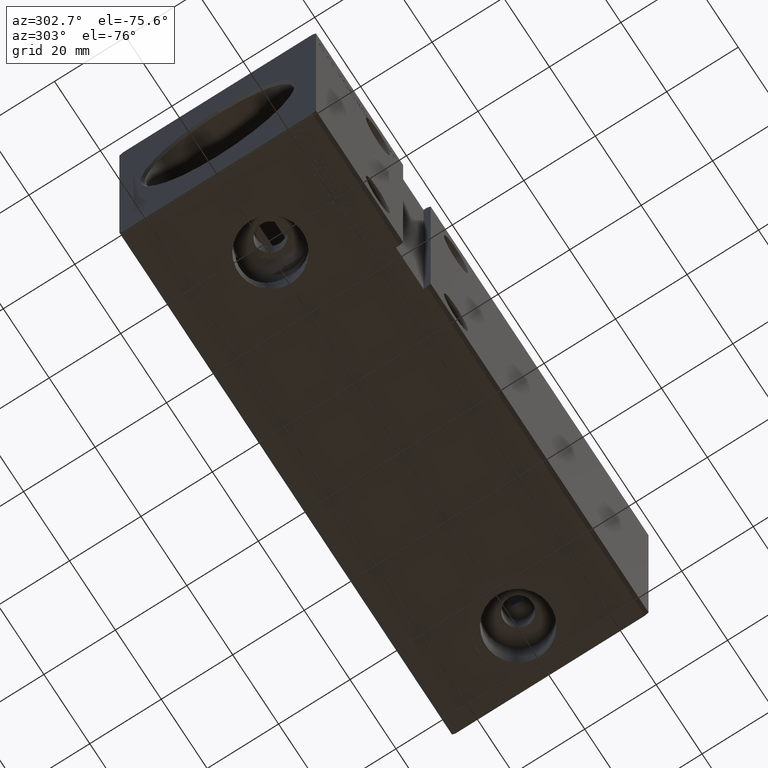
[diagram: clean part render]
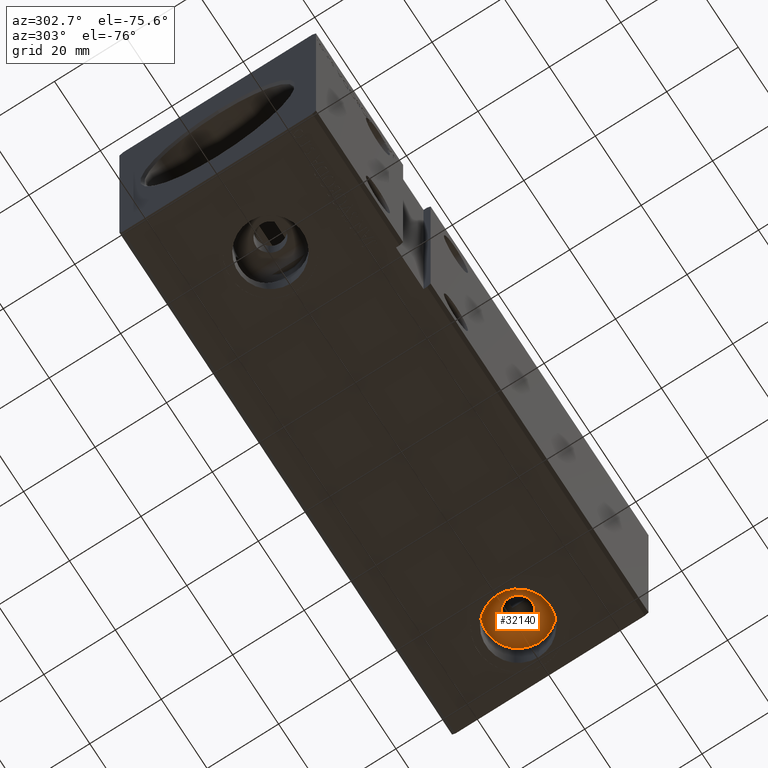
[diagram: same view with one face highlighted and labeled with its STEP entity id]
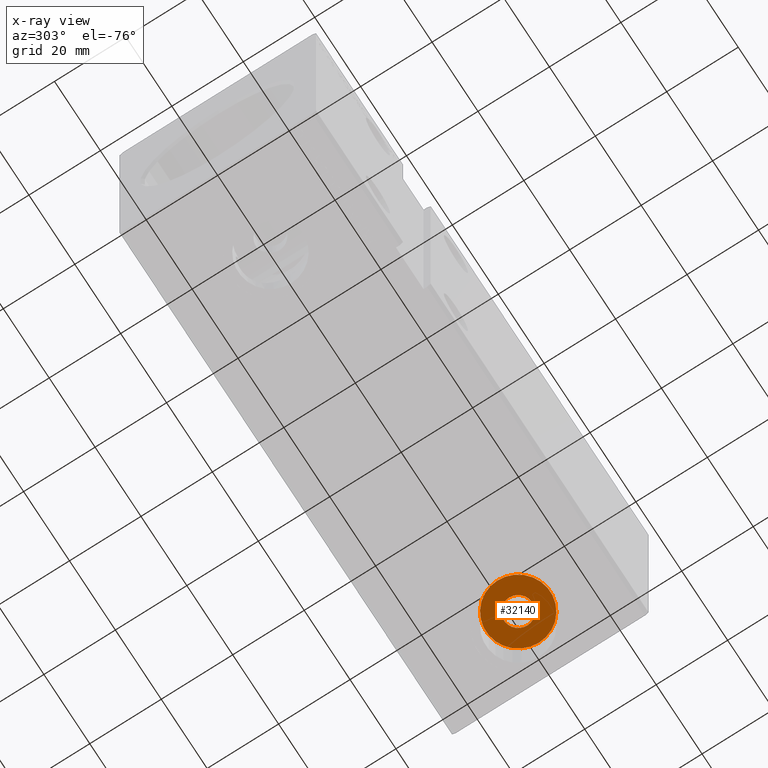
[diagram: x-ray of the same camera — body ghosted, the highlighted face saturated]
A machine part, auxiliary view. The second image highlights one B-rep face of the part: STEP entity #32140.
The next image is the same camera in x-ray: the body ghosted, the highlighted face saturated — about 0% of this face is hidden behind the body in this view.
In plain terms, the highlighted planar face has unit normal (0, 0, -1).
Its self-contained STEP definition (entity closure, byte-faithful):
#155 = VERTEX_POINT ( 'NONE', #12234 ) ;
#889 = AXIS2_PLACEMENT_3D ( 'NONE', #22356, #15987, #12607 ) ;
#1468 = FACE_OUTER_BOUND ( 'NONE', #2771, .T. ) ;
#1624 = CIRCLE ( 'NONE', #2349, 4.000000000000003553 ) ;
#1695 = AXIS2_PLACEMENT_3D ( 'NONE', #9427, #33383, #18015 ) ;
#2349 = AXIS2_PLACEMENT_3D ( 'NONE', #17452, #17258, #20829 ) ;
#2771 = EDGE_LOOP ( 'NONE', ( #37873, #38773 ) ) ;
#2900 = EDGE_CURVE ( 'NONE', #22588, #25705, #32179, .T. ) ;
#9216 = ORIENTED_EDGE ( 'NONE', *, *, #37714, .F. ) ;
#9427 = CARTESIAN_POINT ( 'NONE',  ( 130.9999999999999432, -1.771764358548707728E-14, -23.79999999999998650 ) ) ;
#11031 = PLANE ( 'NONE',  #28150 ) ;
#12234 = CARTESIAN_POINT ( 'NONE',  ( 134.9999999999999432, -1.722778486582813669E-14, -23.79999999999998650 ) ) ;
#12607 = DIRECTION ( 'NONE',  ( -1.000000000000000000, 0.000000000000000000, 0.000000000000000000 ) ) ;
#12638 = CARTESIAN_POINT ( 'NONE',  ( 130.9999999999999432, -1.771764358548707728E-14, -23.79999999999998650 ) ) ;
#13029 = DIRECTION ( 'NONE',  ( 0.000000000000000000, 0.000000000000000000, -1.000000000000000000 ) ) ;
#14243 = CIRCLE ( 'NONE', #889, 8.999999999999994671 ) ;
#15987 = DIRECTION ( 'NONE',  ( 0.000000000000000000, 0.000000000000000000, -1.000000000000000000 ) ) ;
#17210 = DIRECTION ( 'NONE',  ( 0.000000000000000000, 0.000000000000000000, -1.000000000000000000 ) ) ;
#17258 = DIRECTION ( 'NONE',  ( 0.000000000000000000, 0.000000000000000000, -1.000000000000000000 ) ) ;
#17452 = CARTESIAN_POINT ( 'NONE',  ( 130.9999999999999432, -1.771764358548707728E-14, -23.79999999999998650 ) ) ;
#18015 = DIRECTION ( 'NONE',  ( -1.000000000000000000, 0.000000000000000000, 0.000000000000000000 ) ) ;
#18487 = VERTEX_POINT ( 'NONE', #31240 ) ;
#19206 = DIRECTION ( 'NONE',  ( -1.000000000000000000, 0.000000000000000000, 0.000000000000000000 ) ) ;
#19605 = DIRECTION ( 'NONE',  ( -1.000000000000000000, 0.000000000000000000, -0.000000000000000000 ) ) ;
#20829 = DIRECTION ( 'NONE',  ( -1.000000000000000000, 0.000000000000000000, 0.000000000000000000 ) ) ;
#22238 = CARTESIAN_POINT ( 'NONE',  ( 139.9999999999999716, -1.661546146625446095E-14, -23.79999999999998650 ) ) ;
#22356 = CARTESIAN_POINT ( 'NONE',  ( 130.9999999999999432, -1.771764358548707728E-14, -23.79999999999998650 ) ) ;
#22588 = VERTEX_POINT ( 'NONE', #33096 ) ;
#22995 = CARTESIAN_POINT ( 'NONE',  ( 0.000000000000000000, 0.000000000000000000, -23.79999999999998650 ) ) ;
#24205 = CIRCLE ( 'NONE', #35692, 4.000000000000003553 ) ;
#24217 = EDGE_CURVE ( 'NONE', #25705, #22588, #14243, .T. ) ;
#25705 = VERTEX_POINT ( 'NONE', #22238 ) ;
#28150 = AXIS2_PLACEMENT_3D ( 'NONE', #22995, #17210, #19605 ) ;
#31067 = ORIENTED_EDGE ( 'NONE', *, *, #32952, .F. ) ;
#31240 = CARTESIAN_POINT ( 'NONE',  ( 126.9999999999999432, -1.771764358548707728E-14, -23.79999999999998650 ) ) ;
#31990 = FACE_BOUND ( 'NONE', #35537, .T. ) ;
#32140 = ADVANCED_FACE ( 'NONE', ( #31990, #1468 ), #11031, .T. ) ;
#32179 = CIRCLE ( 'NONE', #1695, 8.999999999999994671 ) ;
#32952 = EDGE_CURVE ( 'NONE', #18487, #155, #24205, .T. ) ;
#33096 = CARTESIAN_POINT ( 'NONE',  ( 121.9999999999999574, -1.771764358548707728E-14, -23.79999999999998650 ) ) ;
#33383 = DIRECTION ( 'NONE',  ( 0.000000000000000000, 0.000000000000000000, -1.000000000000000000 ) ) ;
#35537 = EDGE_LOOP ( 'NONE', ( #31067, #9216 ) ) ;
#35692 = AXIS2_PLACEMENT_3D ( 'NONE', #12638, #13029, #19206 ) ;
#37714 = EDGE_CURVE ( 'NONE', #155, #18487, #1624, .T. ) ;
#37873 = ORIENTED_EDGE ( 'NONE', *, *, #2900, .T. ) ;
#38773 = ORIENTED_EDGE ( 'NONE', *, *, #24217, .T. ) ;